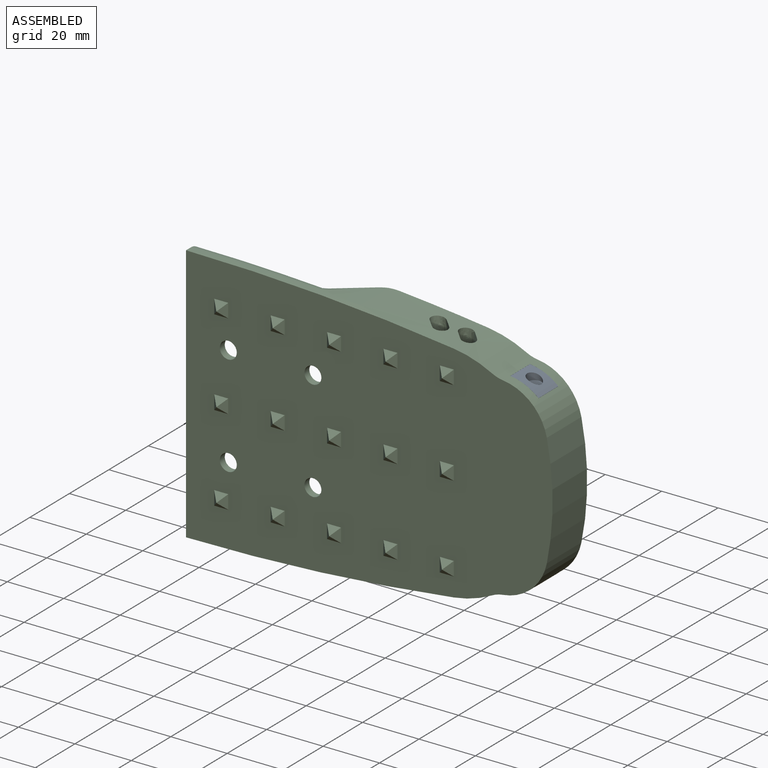
[diagram: assembled view]
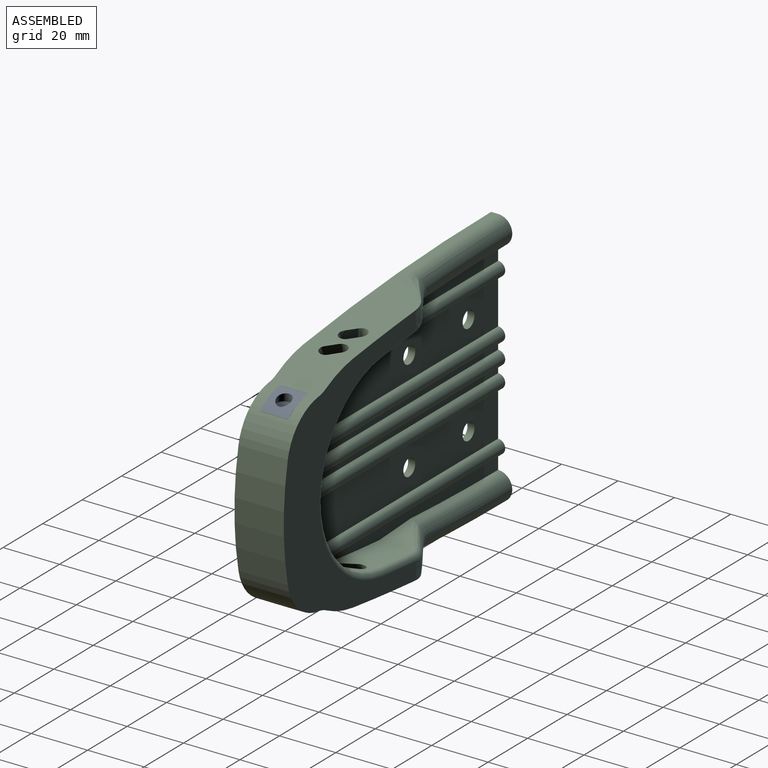
[diagram: assembled view, second angle]
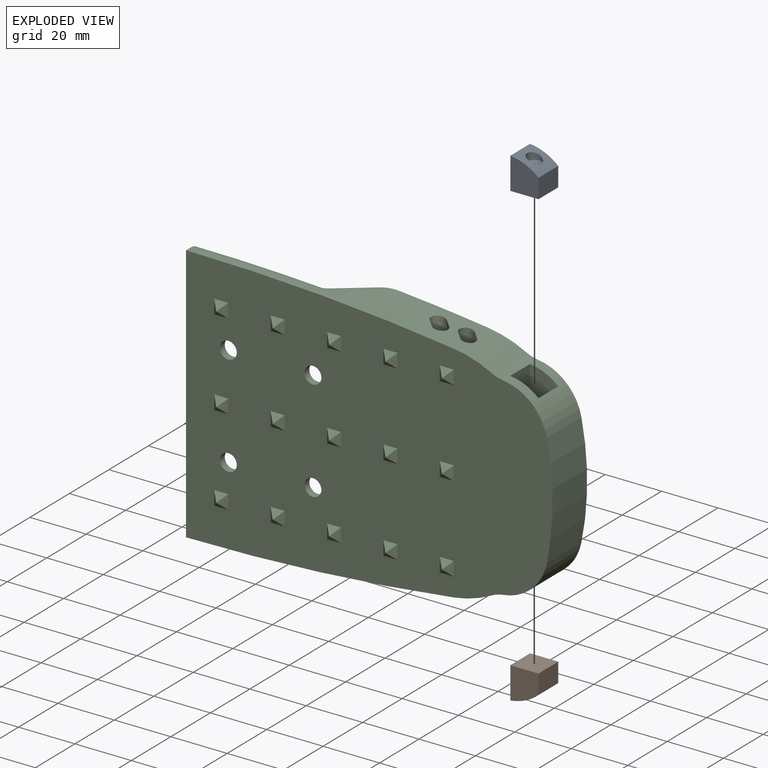
[diagram: exploded view]
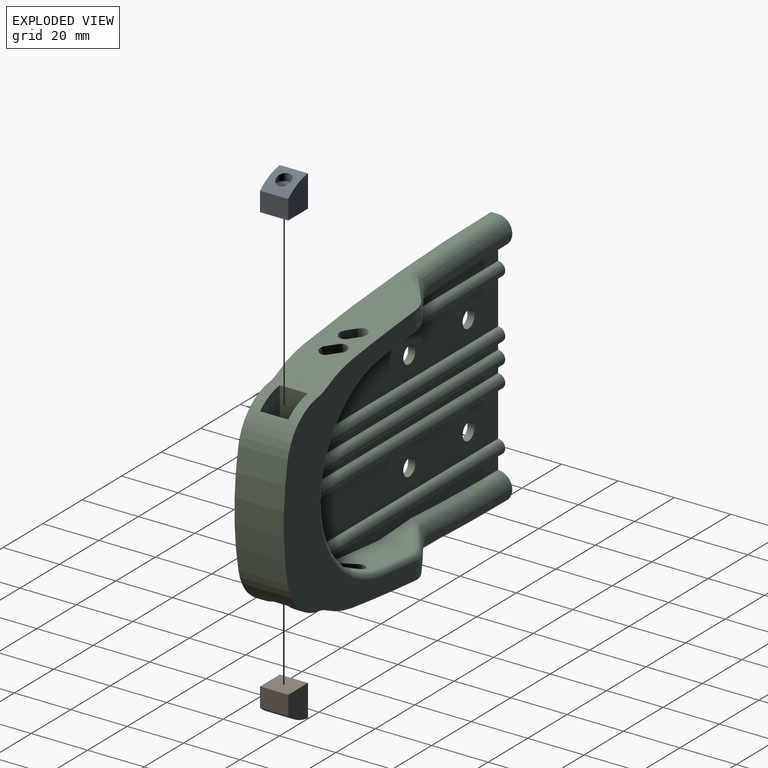
[diagram: exploded view, second angle]
ASSEMBLY  parts=3 mates=6
PART A: 8 faces, bbox 10x10x11.3 mm
  f0: plane 10x6.87mm, normal (1,0,0), area 68.7mm2, adj f2,f3,f4,f5
  f1: plane 11.28x10mm, normal (-1,0,0), area 112.8mm2, adj f2,f3,f4,f5
  f2: plane 11.28x10mm, normal (0,1,0), area 97mm2, adj f0,f1,f4,f5
  f3: plane 11.28x10mm, normal (0,-1,0), area 97mm2, adj f0,f1,f4,f5
  f4: cylinder r=18mm len=10mm, axis (0,-1,0), area 88.8mm2, adj f0,f1,f2,f3,f7
  f5: plane 10x10mm, normal (0,0,-1), area 100mm2, adj f0,f1,f2,f3
  f6: cone r=2.55mm half-angle=35deg, axis (0,0,1), area 35.6mm2, adj f7
  f7: cylinder r=2.55mm len=5.1mm, axis (0,0,-1), area 27.1mm2, adj f4,f6
PART B: same geometry as A
PART C: 147 faces, bbox 94.1x53.8x130 mm
  f0: plane 130x92mm, normal (0,-1,0), area 10167.5mm2, adj f8,f9,f10,f11,f12,f16,f17,f18
  f1: cylinder r=33.83mm len=67.25mm, axis (0,-1,0), area 1049.3mm2, adj f2,f3,f4,f5,f6,f7,f13,f14
  f2: plane 108.49x16mm, normal (0,1,0), area 1611.8mm2, adj f1,f11,f81,f82,f84,f85
  f3: plane 109.91x2.5mm, normal (0,1,0), area 274.5mm2, adj f1,f11,f80,f81
  f4: plane 109.91x2.5mm, normal (0,1,0), area 274.5mm2, adj f1,f11,f79,f80
  f5: plane 108.49x16mm, normal (0,1,0), area 1611.8mm2, adj f1,f11,f78,f79,f83,f86
  f6: plane 89.71x5mm, normal (0,1,0), area 353.3mm2, adj f1,f11,f14,f31,f38,f58,f78
  f7: plane 89.71x5mm, normal (0,1,0), area 353.3mm2, adj f1,f11,f13,f32,f33,f56,f82
  f8: cylinder r=40.21mm len=17.5mm, axis (0,1,0), area 242.2mm2, adj f0,f10,f15,f19,f44,f46
  f9: cylinder r=40.21mm len=17.5mm, axis (0,1,0), area 242.2mm2, adj f0,f12,f15,f16,f47,f50
  f10: cylinder r=739.11mm len=94.96mm, axis (0,1,0), area 693.3mm2, adj f0,f8,f11,f15,f32,f35,f43,f44
  f11: plane 92x7.5mm, normal (0,0,-1), area 357.6mm2, adj f0,f2,f3,f4,f5,f6,f7,f10
  f12: cylinder r=739.11mm len=94.96mm, axis (0,1,0), area 693.3mm2, adj f0,f9,f11,f15,f31,f36,f39,f40
  f13: cylinder r=731.11mm len=19.41mm, axis (0,-1,0), area 251.5mm2, adj f1,f7,f56,f71,f72
  f14: cylinder r=731.11mm len=19.41mm, axis (0,-1,0), area 251.5mm2, adj f1,f6,f58,f68,f69
  f15: plane 86.52x67.03mm, normal (0,1,0), area 1987.6mm2, adj f8,f9,f10,f12,f16,f17,f18,f19
  f16: cylinder r=10.89mm len=17.5mm, axis (0,1,0), area 70.7mm2, adj f0,f9,f15,f17,f27
  f17: cylinder r=18mm len=17.5mm, axis (0,1,0), area 283.4mm2, adj f0,f15,f16,f18,f26,f28,f29
  f18: cylinder r=100mm len=40.24mm, axis (0,1,0), area 709.1mm2, adj f0,f15,f17,f20
  f19: cylinder r=10.89mm len=17.5mm, axis (0,1,0), area 70.7mm2, adj f0,f8,f15,f20,f23
  f20: cylinder r=18mm len=17.5mm, axis (0,1,0), area 283.4mm2, adj f0,f15,f18,f19,f21,f22,f24
  f21: plane 10x6.81mm, normal (0,0,-1), area 68.1mm2, adj f20,f22,f24,f25
  f22: plane 11.32x10mm, normal (0,1,0), area 96.9mm2, adj f20,f21,f23,f25
  f23: plane 11.32x10mm, normal (0,0,1), area 113.2mm2, adj f19,f22,f24,f25
  f24: plane 11.32x10mm, normal (0,-1,0), area 96.9mm2, adj f20,f21,f23,f25
  f25: plane 10x10mm, normal (-1,0,0), area 100mm2, adj f21,f22,f23,f24
  f26: plane 11.32x10mm, normal (0,1,0), area 96.9mm2, adj f17,f27,f29,f30
  f27: plane 11.32x10mm, normal (0,0,1), area 113.2mm2, adj f16,f26,f28,f30
  f28: plane 11.32x10mm, normal (0,-1,0), area 96.9mm2, adj f17,f27,f29,f30
  f29: plane 10x6.81mm, normal (0,0,-1), area 68.1mm2, adj f17,f26,f28,f30
  f30: plane 10x10mm, normal (1,0,0), area 100mm2, adj f26,f27,f28,f29
  f31: torus R=734.11mm, axis (0,-1,0), area 692.9mm2, adj f6,f11,f12,f36,f38,f61,f62
  f32: torus R=734.11mm, axis (0,1,0), area 692.9mm2, adj f7,f10,f11,f33,f35,f59,f60
  f33: bspline ~15.61x15mm, area 110.8mm2, adj f7,f32,f56,f59,f74,f75,f76
  f34: bspline ~15.55x12mm, area 99.9mm2, adj f35,f55,f60,f75
  f35: bspline ~48.79x16.81mm, area 141.3mm2, adj f10,f32,f34,f55,f60
  f36: bspline ~48.79x16.81mm, area 141.3mm2, adj f12,f31,f37,f57,f61
  f37: bspline ~15.55x12mm, area 99.9mm2, adj f36,f57,f61,f65
  f38: bspline ~15.61x15mm, area 110.8mm2, adj f6,f31,f58,f62,f64,f65,f66
  f39: bspline ~8.91x5.36mm, area 65.8mm2, adj f1,f12,f40,f42
  f40: plane 9.45x4.01mm, normal (-0.09,-0.7,-0.7), area 35.2mm2, adj f1,f12,f39,f41
  f41: bspline ~9.5x5.43mm, area 69mm2, adj f1,f12,f40,f42
  f42: plane 8.75x3.92mm, normal (0.09,0.7,0.7), area 33.2mm2, adj f1,f12,f39,f41
  f43: plane 10.44x3.93mm, normal (0.09,0.7,0.7), area 38.6mm2, adj f1,f10,f44,f45
  f44: bspline ~12.48x5.8mm, area 89.6mm2, adj f1,f8,f10,f43,f46
  f45: bspline ~10.77x5.59mm, area 76.9mm2, adj f1,f10,f43,f46
  f46: plane 11.95x4.08mm, normal (-0.09,-0.7,-0.7), area 43.8mm2, adj f1,f8,f10,f44,f45
  f47: bspline ~91.39x18.29mm, area 89.6mm2, adj f1,f9,f12,f48,f50
  f48: plane 10.44x3.93mm, normal (-0.09,0.7,0.7), area 38.6mm2, adj f1,f12,f47,f49
  f49: bspline ~10.77x5.59mm, area 76.9mm2, adj f1,f12,f48,f50
  f50: plane 11.95x4.08mm, normal (0.09,-0.7,-0.7), area 43.8mm2, adj f1,f9,f12,f47,f49
  f51: bspline ~8.91x5.36mm, area 65.8mm2, adj f1,f10,f52,f54
  f52: plane 8.75x3.92mm, normal (-0.09,0.7,0.7), area 33.2mm2, adj f1,f10,f51,f53
  f53: bspline ~91.39x18.29mm, area 69mm2, adj f1,f10,f52,f54
  f54: plane 9.45x4.01mm, normal (0.09,-0.7,-0.7), area 35.2mm2, adj f1,f10,f51,f53
  f55: bspline ~11.68x7.33mm, area 37.5mm2, adj f10,f15,f34,f35,f72,f73,f74
  f56: bspline ~14.82x1.4mm, area 15.3mm2, adj f7,f13,f33,f73
  f57: bspline ~10.11x6.89mm, area 37.6mm2, adj f12,f15,f36,f37,f66,f67,f68
  f58: bspline ~15.48x1.4mm, area 15.3mm2, adj f6,f14,f38,f67
  f59: bspline ~2.91x2.07mm, area 1.8mm2, adj f32,f33,f77
  f60: bspline ~8.73x2.94mm, area 19.2mm2, adj f32,f34,f35,f76,f77
  f61: bspline ~8.68x2.95mm, area 19.2mm2, adj f31,f36,f37,f63,f64
  f62: bspline ~2.91x2.07mm, area 1.8mm2, adj f31,f38,f63
  f63: bspline ~2.23x0.81mm, area 0.2mm2, adj f61,f62,f64
  f64: bspline ~1.4x1.1mm, area 0.6mm2, adj f38,f61,f63,f65
  f65: bspline ~16.74x12.19mm, area 33.9mm2, adj f37,f38,f64,f66
  f66: bspline ~4.09x3.61mm, area 4mm2, adj f38,f57,f65,f67
  f67: bspline ~4.94x3.56mm, area 3.8mm2, adj f57,f58,f66,f68
  f68: bspline ~5.65x2.49mm, area 9.2mm2, adj f14,f57,f67,f69
  f69: torus R=733.11mm, axis (0,1,0), area 53.3mm2, adj f14,f15,f68,f70
  f70: torus R=35.83mm, axis (0,1,0), area 317.3mm2, adj f1,f15,f69,f71
  f71: torus R=733.11mm, axis (0,1,0), area 53.3mm2, adj f13,f15,f70,f72
  f72: bspline ~5.45x2.44mm, area 9.2mm2, adj f13,f55,f71,f73
  f73: bspline ~4.8x3.58mm, area 3.8mm2, adj f55,f56,f72,f74
  f74: bspline ~3.85x3.17mm, area 4mm2, adj f33,f55,f73,f75
  f75: bspline ~16.74x12.19mm, area 33.9mm2, adj f33,f34,f74,f76
  f76: bspline ~1.4x1.11mm, area 0.6mm2, adj f33,f60,f75,f77
  f77: bspline ~1.86x0.63mm, area 0.2mm2, adj f59,f60,f76
  f78: cylinder r=2.5mm len=97.81mm, axis (0,0,-1), area 736.4mm2, adj f1,f5,f6,f11
  f79: cylinder r=2.5mm len=109.63mm, axis (0,0,-1), area 856.5mm2, adj f1,f4,f5,f11
  f80: cylinder r=2.5mm len=109.91mm, axis (0,0,-1), area 863.2mm2, adj f1,f3,f4,f11
  f81: cylinder r=2.5mm len=109.63mm, axis (0,0,-1), area 856.5mm2, adj f1,f2,f3,f11
  f82: cylinder r=2.5mm len=97.81mm, axis (0,0,-1), area 736.4mm2, adj f1,f2,f7,f11
  f83: cylinder r=3mm len=6mm, axis (0,1,0), area 47.1mm2, adj f0,f5
  f84: cylinder r=3mm len=6mm, axis (0,1,0), area 47.1mm2, adj f0,f2
  f85: cylinder r=3mm len=6mm, axis (0,1,0), area 47.1mm2, adj f0,f2
  f86: cylinder r=3mm len=6mm, axis (0,1,0), area 47.1mm2, adj f0,f5
  f87: plane 5x2.5mm, normal (0,-0.71,-0.71), area 8.8mm2, adj f0,f88,f90
  f88: plane 5x2.5mm, normal (0.71,-0.71,0), area 8.8mm2, adj f0,f87,f89
  f89: plane 5x2.5mm, normal (0,-0.71,0.71), area 8.8mm2, adj f0,f88,f90
  f90: plane 5x2.5mm, normal (-0.71,-0.71,0), area 8.8mm2, adj f0,f87,f89
  f91: plane 5x2.5mm, normal (0.71,-0.71,0), area 8.8mm2, adj f0,f92,f94
  f92: plane 5x2.5mm, normal (0,-0.71,0.71), area 8.8mm2, adj f0,f91,f93
  f93: plane 5x2.5mm, normal (-0.71,-0.71,0), area 8.8mm2, adj f0,f92,f94
  f94: plane 5x2.5mm, normal (0,-0.71,-0.71), area 8.8mm2, adj f0,f91,f93
  f95: plane 5x2.5mm, normal (0.71,-0.71,0), area 8.8mm2, adj f0,f96,f98
  f96: plane 5x2.5mm, normal (0,-0.71,0.71), area 8.8mm2, adj f0,f95,f97
  f97: plane 5x2.5mm, normal (-0.71,-0.71,0), area 8.8mm2, adj f0,f96,f98
  f98: plane 5x2.5mm, normal (0,-0.71,-0.71), area 8.8mm2, adj f0,f95,f97
  f99: plane 5x2.5mm, normal (0.71,-0.71,0), area 8.8mm2, adj f0,f100,f102
  f100: plane 5x2.5mm, normal (0,-0.71,0.71), area 8.8mm2, adj f0,f99,f101
  f101: plane 5x2.5mm, normal (-0.71,-0.71,0), area 8.8mm2, adj f0,f100,f102
  f102: plane 5x2.5mm, normal (0,-0.71,-0.71), area 8.8mm2, adj f0,f99,f101
  f103: plane 5x2.5mm, normal (0.71,-0.71,0), area 8.8mm2, adj f0,f104,f106
  f104: plane 5x2.5mm, normal (0,-0.71,0.71), area 8.8mm2, adj f0,f103,f105
  f105: plane 5x2.5mm, normal (-0.71,-0.71,0), area 8.8mm2, adj f0,f104,f106
  f106: plane 5x2.5mm, normal (0,-0.71,-0.71), area 8.8mm2, adj f0,f103,f105
  f107: plane 5x2.5mm, normal (0.71,-0.71,0), area 8.8mm2, adj f0,f108,f110
  f108: plane 5x2.5mm, normal (0,-0.71,0.71), area 8.8mm2, adj f0,f107,f109
  f109: plane 5x2.5mm, normal (-0.71,-0.71,0), area 8.8mm2, adj f0,f108,f110
  f110: plane 5x2.5mm, normal (0,-0.71,-0.71), area 8.8mm2, adj f0,f107,f109
  f111: plane 5x2.5mm, normal (0.71,-0.71,0), area 8.8mm2, adj f0,f112,f114
  f112: plane 5x2.5mm, normal (0,-0.71,0.71), area 8.8mm2, adj f0,f111,f113
  f113: plane 5x2.5mm, normal (-0.71,-0.71,0), area 8.8mm2, adj f0,f112,f114
  f114: plane 5x2.5mm, normal (0,-0.71,-0.71), area 8.8mm2, adj f0,f111,f113
  f115: plane 5x2.5mm, normal (0.71,-0.71,0), area 8.8mm2, adj f0,f116,f118
  f116: plane 5x2.5mm, normal (0,-0.71,0.71), area 8.8mm2, adj f0,f115,f117
  f117: plane 5x2.5mm, normal (-0.71,-0.71,0), area 8.8mm2, adj f0,f116,f118
  f118: plane 5x2.5mm, normal (0,-0.71,-0.71), area 8.8mm2, adj f0,f115,f117
  f119: plane 5x2.5mm, normal (0.71,-0.71,0), area 8.8mm2, adj f0,f120,f122
  f120: plane 5x2.5mm, normal (0,-0.71,0.71), area 8.8mm2, adj f0,f119,f121
  f121: plane 5x2.5mm, normal (-0.71,-0.71,0), area 8.8mm2, adj f0,f120,f122
  f122: plane 5x2.5mm, normal (0,-0.71,-0.71), area 8.8mm2, adj f0,f119,f121
  f123: plane 5x2.5mm, normal (0.71,-0.71,0), area 8.8mm2, adj f0,f124,f126
  f124: plane 5x2.5mm, normal (0,-0.71,0.71), area 8.8mm2, adj f0,f123,f125
  f125: plane 5x2.5mm, normal (-0.71,-0.71,0), area 8.8mm2, adj f0,f124,f126
  f126: plane 5x2.5mm, normal (0,-0.71,-0.71), area 8.8mm2, adj f0,f123,f125
  f127: plane 5x2.5mm, normal (0.71,-0.71,0), area 8.8mm2, adj f0,f128,f130
  f128: plane 5x2.5mm, normal (0,-0.71,0.71), area 8.8mm2, adj f0,f127,f129
  f129: plane 5x2.5mm, normal (-0.71,-0.71,0), area 8.8mm2, adj f0,f128,f130
  f130: plane 5x2.5mm, normal (0,-0.71,-0.71), area 8.8mm2, adj f0,f127,f129
  f131: plane 5x2.5mm, normal (0.71,-0.71,0), area 8.8mm2, adj f0,f132,f134
  f132: plane 5x2.5mm, normal (0,-0.71,0.71), area 8.8mm2, adj f0,f131,f133
  f133: plane 5x2.5mm, normal (-0.71,-0.71,0), area 8.8mm2, adj f0,f132,f134
  f134: plane 5x2.5mm, normal (0,-0.71,-0.71), area 8.8mm2, adj f0,f131,f133
  f135: plane 5x2.5mm, normal (0.71,-0.71,0), area 8.8mm2, adj f0,f136,f138
  f136: plane 5x2.5mm, normal (0,-0.71,0.71), area 8.8mm2, adj f0,f135,f137
  f137: plane 5x2.5mm, normal (-0.71,-0.71,0), area 8.8mm2, adj f0,f136,f138
  f138: plane 5x2.5mm, normal (0,-0.71,-0.71), area 8.8mm2, adj f0,f135,f137
  f139: plane 5x2.5mm, normal (0.71,-0.71,0), area 8.8mm2, adj f0,f140,f142
  f140: plane 5x2.5mm, normal (0,-0.71,0.71), area 8.8mm2, adj f0,f139,f141
  f141: plane 5x2.5mm, normal (-0.71,-0.71,0), area 8.8mm2, adj f0,f140,f142
  f142: plane 5x2.5mm, normal (0,-0.71,-0.71), area 8.8mm2, adj f0,f139,f141
  f143: plane 5x2.5mm, normal (0.71,-0.71,0), area 8.8mm2, adj f0,f144,f146
  f144: plane 5x2.5mm, normal (0,-0.71,0.71), area 8.8mm2, adj f0,f143,f145
  f145: plane 5x2.5mm, normal (-0.71,-0.71,0), area 8.8mm2, adj f0,f144,f146
  f146: plane 5x2.5mm, normal (0,-0.71,-0.71), area 8.8mm2, adj f0,f143,f145
PLACE A rot(axis=(0.54,-0.41,-0.74),0deg) t=(-25.55,137.76,61.97)mm
PLACE B rot(axis=(-1,0,0),180deg) t=(-25.55,137.76,16.75)mm
PLACE C rot(axis=(0,1,0),90deg) t=(-142.92,131.51,39.36)mm
MATE planar B.f5 <-> C.f30  axis (0,0,1) through (-20.55,137.76,16.3)mm
MATE planar B.f1 <-> C.f27  axis (-1,0,0) through (-30.55,137.76,10.66)mm
MATE planar B.f2 <-> C.f26  axis (0,-1,0) through (-25.92,132.76,11.37)mm
MATE planar A.f6 <-> C.f25  axis (0,0,-1) through (-25.55,137.76,62.42)mm
MATE planar A.f3 <-> C.f22  axis (0,-1,0) through (-25.92,132.76,67.35)mm
MATE planar C.f23 <-> A.f1  axis (1,0,0) through (-30.55,137.76,68.08)mm
